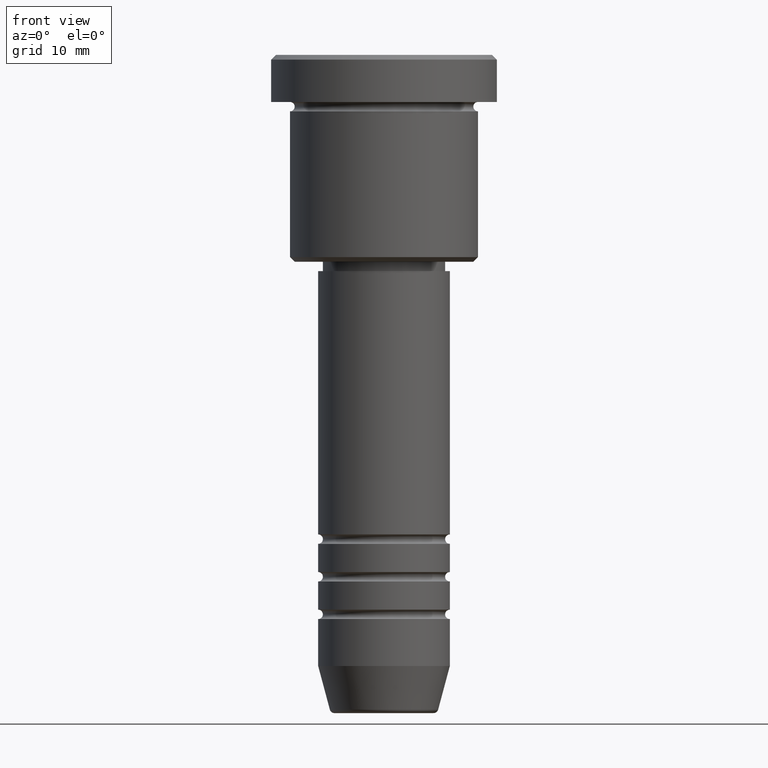
[diagram: clean part render]
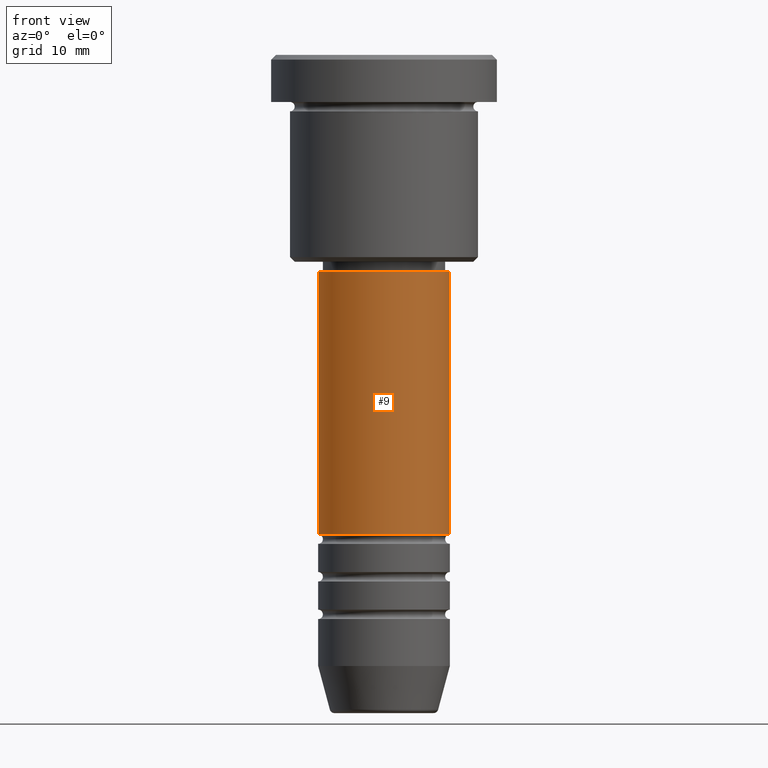
[diagram: same view with one face highlighted and labeled with its STEP entity id]
A machine part, front view. The second image highlights one B-rep face of the part: STEP entity #9.
In plain terms, the highlighted cylindrical surface (partial cylindrical patch) has radius 7 mm, axis along (-0, -0, 1).
Its self-contained STEP definition (entity closure, byte-faithful):
#9 = ADVANCED_FACE ( 'NONE', ( #167 ), #257, .T. ) ;
#13 = AXIS2_PLACEMENT_3D ( 'NONE', #697, #41, #773 ) ;
#16 = ORIENTED_EDGE ( 'NONE', *, *, #489, .F. ) ;
#41 = DIRECTION ( 'NONE',  ( -0.000000000000000000, -0.000000000000000000, 1.000000000000000000 ) ) ;
#79 = EDGE_CURVE ( 'NONE', #999, #401, #658, .T. ) ;
#111 = LINE ( 'NONE', #742, #1020 ) ;
#146 = CARTESIAN_POINT ( 'NONE',  ( -7.000000000000000888, 8.572527594031474176E-16, 0.000000000000000000 ) ) ;
#155 = EDGE_LOOP ( 'NONE', ( #16, #546, #232, #244 ) ) ;
#167 = FACE_OUTER_BOUND ( 'NONE', #155, .T. ) ;
#190 = CIRCLE ( 'NONE', #13, 7.000000000000000888 ) ;
#232 = ORIENTED_EDGE ( 'NONE', *, *, #716, .T. ) ;
#244 = ORIENTED_EDGE ( 'NONE', *, *, #974, .F. ) ;
#257 = CYLINDRICAL_SURFACE ( 'NONE', #393, 7.000000000000000888 ) ;
#276 = CARTESIAN_POINT ( 'NONE',  ( 7.000000000000000888, 0.000000000000000000, -51.00000000000000000 ) ) ;
#309 = DIRECTION ( 'NONE',  ( -0.000000000000000000, -0.000000000000000000, 1.000000000000000000 ) ) ;
#392 = VERTEX_POINT ( 'NONE', #1168 ) ;
#393 = AXIS2_PLACEMENT_3D ( 'NONE', #438, #1064, #865 ) ;
#401 = VERTEX_POINT ( 'NONE', #276 ) ;
#438 = CARTESIAN_POINT ( 'NONE',  ( 0.000000000000000000, 0.000000000000000000, 0.000000000000000000 ) ) ;
#489 = EDGE_CURVE ( 'NONE', #999, #1047, #965, .T. ) ;
#518 = DIRECTION ( 'NONE',  ( -0.000000000000000000, -0.000000000000000000, 1.000000000000000000 ) ) ;
#546 = ORIENTED_EDGE ( 'NONE', *, *, #79, .T. ) ;
#658 = CIRCLE ( 'NONE', #961, 7.000000000000000888 ) ;
#661 = VECTOR ( 'NONE', #883, 1000.000000000000000 ) ;
#697 = CARTESIAN_POINT ( 'NONE',  ( 0.000000000000000000, 0.000000000000000000, -23.00000000000000355 ) ) ;
#716 = EDGE_CURVE ( 'NONE', #401, #392, #111, .T. ) ;
#742 = CARTESIAN_POINT ( 'NONE',  ( 7.000000000000000888, 0.000000000000000000, 0.000000000000000000 ) ) ;
#773 = DIRECTION ( 'NONE',  ( 1.000000000000000000, 0.000000000000000000, 0.000000000000000000 ) ) ;
#786 = DIRECTION ( 'NONE',  ( 1.000000000000000000, 0.000000000000000000, 0.000000000000000000 ) ) ;
#865 = DIRECTION ( 'NONE',  ( 1.000000000000000000, 0.000000000000000000, 0.000000000000000000 ) ) ;
#883 = DIRECTION ( 'NONE',  ( -0.000000000000000000, -0.000000000000000000, 1.000000000000000000 ) ) ;
#896 = CARTESIAN_POINT ( 'NONE',  ( -7.000000000000000888, 8.572527594031474176E-16, -23.00000000000000355 ) ) ;
#961 = AXIS2_PLACEMENT_3D ( 'NONE', #1153, #518, #786 ) ;
#965 = LINE ( 'NONE', #146, #661 ) ;
#974 = EDGE_CURVE ( 'NONE', #1047, #392, #190, .T. ) ;
#999 = VERTEX_POINT ( 'NONE', #1169 ) ;
#1020 = VECTOR ( 'NONE', #309, 1000.000000000000000 ) ;
#1047 = VERTEX_POINT ( 'NONE', #896 ) ;
#1064 = DIRECTION ( 'NONE',  ( -0.000000000000000000, -0.000000000000000000, 1.000000000000000000 ) ) ;
#1153 = CARTESIAN_POINT ( 'NONE',  ( 0.000000000000000000, 0.000000000000000000, -51.00000000000000000 ) ) ;
#1168 = CARTESIAN_POINT ( 'NONE',  ( 7.000000000000000888, 0.000000000000000000, -23.00000000000000355 ) ) ;
#1169 = CARTESIAN_POINT ( 'NONE',  ( -7.000000000000000888, 8.572527594031474176E-16, -51.00000000000000000 ) ) ;